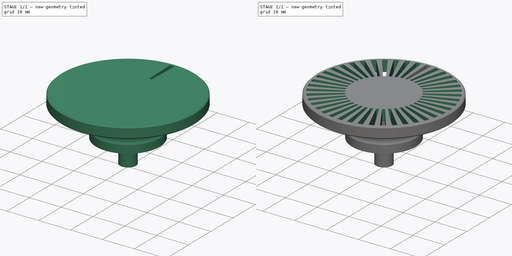
[diagram: build sequence overview — one tinted view per stage of 2, left to right]
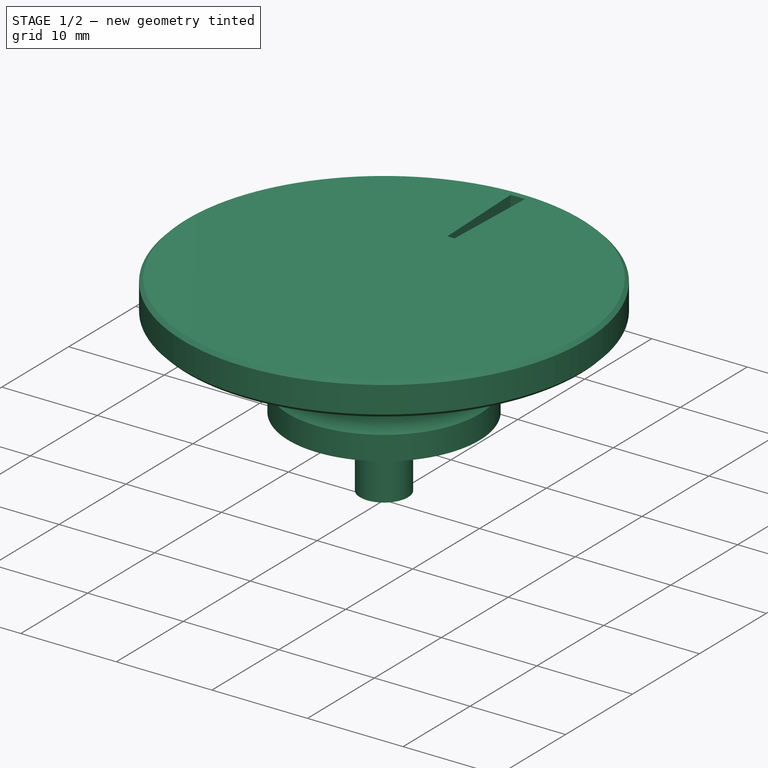
[diagram: stage 1 of 2 — iso view after this stage's code; geometry added in this stage tinted green]
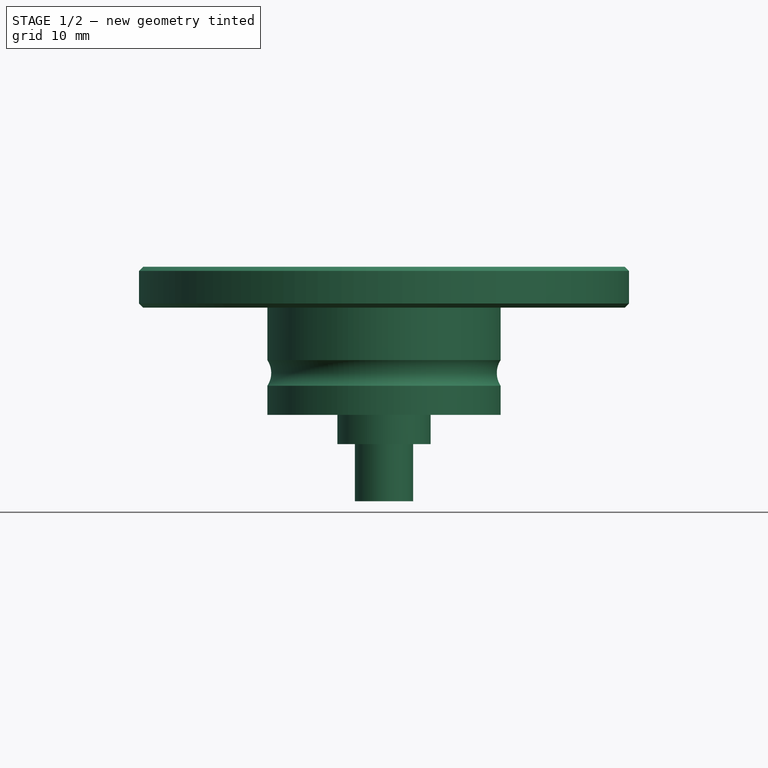
[diagram: stage 1 of 2 — front view after this stage's code; geometry added in this stage tinted green]
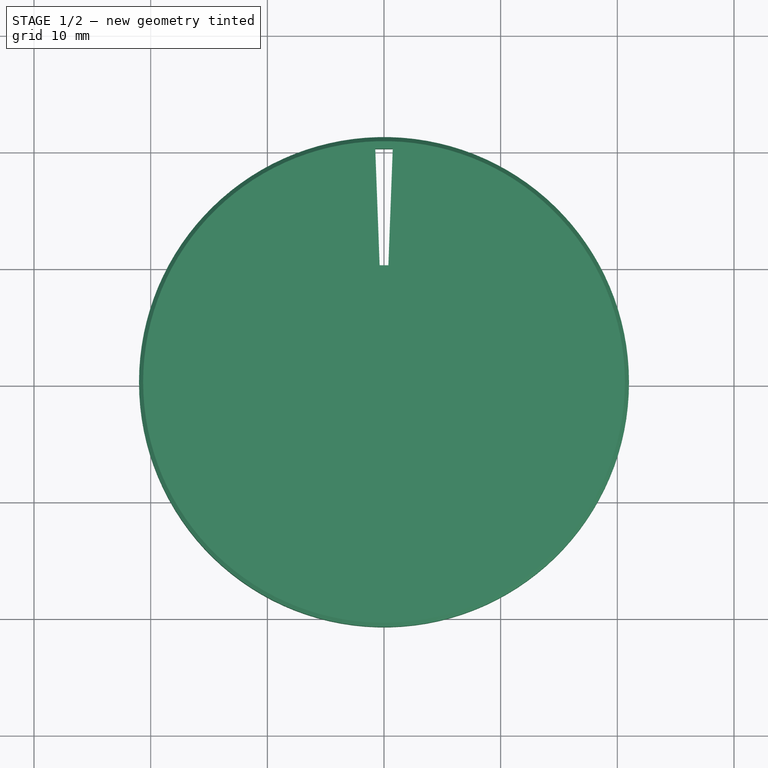
[diagram: stage 1 of 2 — top view after this stage's code; geometry added in this stage tinted green]
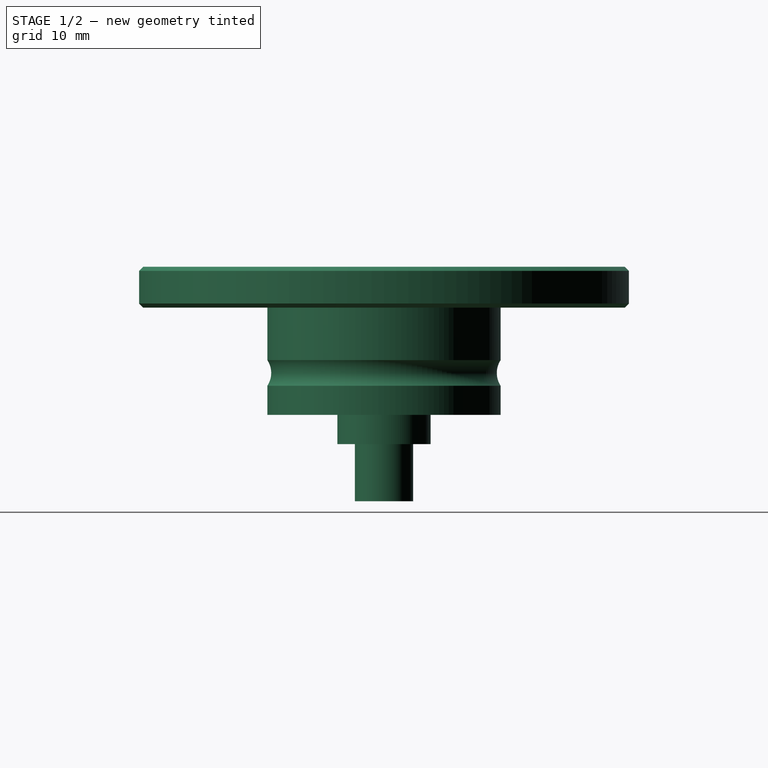
[diagram: stage 1 of 2 — right view after this stage's code; geometry added in this stage tinted green]
FCSTD DOCUMENT  (FreeCAD 0.20RUnknown)
Label: FilamentWheel
License: All rights reserved
LicenseURL: http://en.wikipedia.org/wiki/All_rights_reserved
objects: Sketcher::SketchObject×2, PartDesign::Revolution×1, PartDesign::Pocket×1, PartDesign::PolarPattern×1, PartDesign::Body×1
note: 8 computed .brp shape members not serialized (recipe doc carries the construction recipe); baked Part::Feature solids carry a one-line shape summary decoded from their .brp
EXTERNAL_REF file=SharedParameters.FCStd obj=Spreadsheet

FEATURE [Sketcher::SketchObject] Sketch  label="MainBodySketch"
  FullyConstrained = true
  MapMode = 5
  Placement = pos=(0,0,0) rot=(1,0,0;1.5708rad)
  Support = -> [XZ_Plane]
  expr: .Constraints.SpacerRadius = <<SharedParameters>>#<<Parameters>>.FilementWheel_RibberWheelContactRadius
  expr: Constraints[20] = <<SharedParameters>>#<<Parameters>>.Bearing_innerRadius
  expr: Constraints[22] = <<SharedParameters>>#<<Parameters>>.Bearing_height - <<SharedParameters>>#<<Parameters>>.Tolerance
  sketch-geometry (18):
    g0: LineSegment StartX=0 StartY=0 StartZ=0 EndX=2.5 EndY=0 EndZ=0
    g1: LineSegment StartX=2.5 StartY=0 StartZ=0 EndX=2.5 EndY=4.9 EndZ=0
    g2: LineSegment StartX=2.5 StartY=4.9 StartZ=0 EndX=4 EndY=4.9 EndZ=0
    g3: LineSegment StartX=4 StartY=4.9 StartZ=0 EndX=4 EndY=7.4 EndZ=0
    g4: LineSegment StartX=4 StartY=7.4 StartZ=0 EndX=10 EndY=7.4 EndZ=0
    g5: LineSegment StartX=10 StartY=7.4 StartZ=0 EndX=10 EndY=16.6 EndZ=0
    g6: LineSegment StartX=10 StartY=16.6 StartZ=0 EndX=21 EndY=16.6 EndZ=0
    g7: LineSegment StartX=21 StartY=16.6 StartZ=0 EndX=21 EndY=20.1 EndZ=0
    g8: LineSegment StartX=21 StartY=20.1 StartZ=0 EndX=0 EndY=20.1 EndZ=0
    g9: LineSegment StartX=0 StartY=20.1 StartZ=0 EndX=0 EndY=0 EndZ=0
    g10: LineSegment StartX=10 StartY=7.4 StartZ=0 EndX=10 EndY=9.9 EndZ=0
    g11: LineSegment StartX=10 StartY=16.6 StartZ=0 EndX=10 EndY=12.1 EndZ=0
    g12: ArcOfCircle CenterX=11.6703 CenterY=11 CenterZ=0 NormalX=0 NormalY=0 NormalZ=1 AngleXU=0 Radius=2 StartAngle=2.55923 EndAngle=3.72396
    g13: LineSegment StartX=0 StartY=20.1 StartZ=0 EndX=20.6464 EndY=20.1 EndZ=0
    g14: LineSegment StartX=21 StartY=19.7464 StartZ=0 EndX=21 EndY=16.9536 EndZ=0
    g15: LineSegment StartX=10 StartY=16.6 StartZ=0 EndX=20.6464 EndY=16.6 EndZ=0
    g16: LineSegment StartX=20.6464 StartY=20.1 StartZ=0 EndX=21 EndY=19.7464 EndZ=0
    g17: LineSegment StartX=21 StartY=16.9536 StartZ=0 EndX=20.6464 EndY=16.6 EndZ=0
  constraints (54):
    c: Coincident(g-1,g0)
    c: PointOnObject(g0,g-1)
    c: Coincident(g0,g1)
    c: Vertical(g1)
    c: Coincident(g1,g2)
    c: Coincident(g2,g3)
    c: Vertical(g3)
    c: Coincident(g3,g4)
    c: Horizontal(g4)
    c: Coincident(g4,g5)
    c: Vertical(g5)
    c: Coincident(g5,g6)
    c: Horizontal(g6)
    c: Coincident(g6,g7)
    c: Vertical(g7)
    c: Coincident(g7,g8)
    c: PointOnObject(g8,g-2)
    c: Horizontal(g8)
    c: Coincident(g8,g9)
    c: Coincident(g9,g0)
    c: DistanceX(g0,g0) = 2.5
    c: Horizontal(g2)
    c: DistanceY(g1,g1) = 4.9
    c: DistanceX(g2) = 4
    c: DistanceX(g4) = 10  'SpacerRadius'
    c: DistanceY(g3,g3) = 2.5
    c: DistanceY(g5,g5) = 9.2
    c: Coincident(g10,g4)
    c: PointOnObject(g10,g5)
    c: Coincident(g11,g6)
    c: PointOnObject(g11,g5)
    c: Coincident(g12,g10)
    c: Coincident(g12,g11)
    c: Diameter(g12) = 4
    c: DistanceY(g10,g10) = 2.5
    c: DistanceX(g7) = 21
    c: DistanceY(g7,g7) = 3.5
    c: PointOnObject(g13,g9)
    c: PointOnObject(g13,g8)
    c: Horizontal(g13)
    c: PointOnObject(g14,g7)
    c: PointOnObject(g14,g7)
    c: Coincident(g15,g11)
    c: PointOnObject(g15,g6)
    c: Coincident(g16,g13)
    c: Coincident(g16,g14)
    c: Coincident(g17,g14)
    c: Coincident(g17,g15)
    c: Perpendicular(g16,g17)
    c: Distance(g16) = 0.5
    c: Angle(g8,g16) = 2.35619
    c: Equal(g16,g17)
    c: DistanceY(g10,g11) = 2.2
    c: DistanceY(g9) = 20.1  'Height'
FEATURE [PartDesign::Revolution] Revolution  label="MainBodyRevolution"
  Angle = 360
  Axis = (0,2e-16,1)
  Base = (0,0,0)
  Placement = pos=(0,0,0) rot=(1,0,0;1.5708rad)
  Profile = -> Sketch
  ReferenceAxis = -> Sketch [V_Axis]
  Refine = true
  Reversed = true
FEATURE [Sketcher::SketchObject] Sketch001  label="HoleSketch"
  AttachmentOffset = pos=(0,0,20.1) rot=(0,0,1;0rad)
  FullyConstrained = true
  MapMode = 5
  Placement = pos=(0,0,20.1) rot=(0,0,1;0rad)
  Support = -> [XY_Plane]
  expr: .AttachmentOffset.Base.z = <<MainBodySketch>>.Constraints.Height
  expr: Constraints[10] = <<MainBodySketch>>.Constraints.SpacerRadius
  sketch-geometry (5):
    g0: LineSegment StartX=0 StartY=0 StartZ=0 EndX=-0.75 EndY=20 EndZ=0
    g1: LineSegment StartX=-0.75 StartY=20 StartZ=0 EndX=0.75 EndY=20 EndZ=0
    g2: LineSegment StartX=0.75 StartY=20 StartZ=0 EndX=0.375 EndY=10 EndZ=0
    g3: LineSegment StartX=0.375 StartY=10 StartZ=0 EndX=-0.375 EndY=10 EndZ=0
    g4: LineSegment StartX=-0.375 StartY=10 StartZ=0 EndX=-0.75 EndY=20 EndZ=0
  constraints (12):
    c: Coincident(g0,g-1)
    c: Coincident(g1,g0)
    c: Coincident(g2,g1)
    c: Coincident(g3,g2)
    c: Coincident(g4,g3)
    c: Coincident(g4,g1)
    c: PointOnObject(g3,g0)
    c: Symmetric(g2,g3,g-2)
    c: Symmetric(g1,g1,g-2)
    c: DistanceX(g1,g1) = 1.5
    c: DistanceY(g2) = 10
    c: DistanceY(g1) = 20
FEATURE [PartDesign::Pocket] Pocket  label="HolePocket"
  BaseFeature = -> Revolution
  Direction = (0,0,-1)
  Length = 5
  Length2 = 5
  Placement = pos=(0,0,0) rot=(1,0,0;1.5708rad)
  Profile = -> Sketch001
  ReferenceAxis = -> Sketch001 [N_Axis]
  Refine = true
  Type = 1
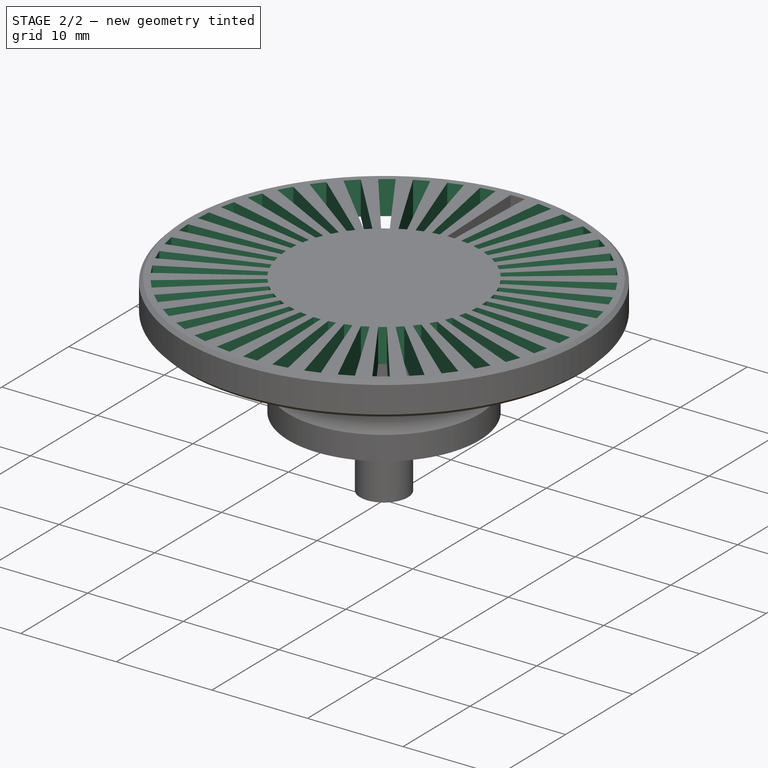
[diagram: stage 2 of 2 — iso view after this stage's code; geometry added in this stage tinted green]
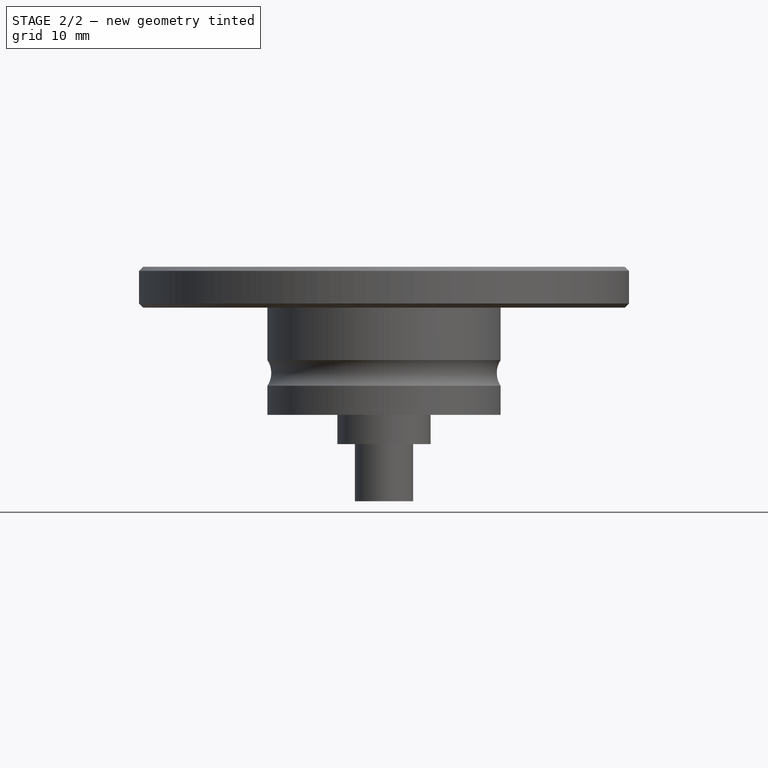
[diagram: stage 2 of 2 — front view after this stage's code; geometry added in this stage tinted green]
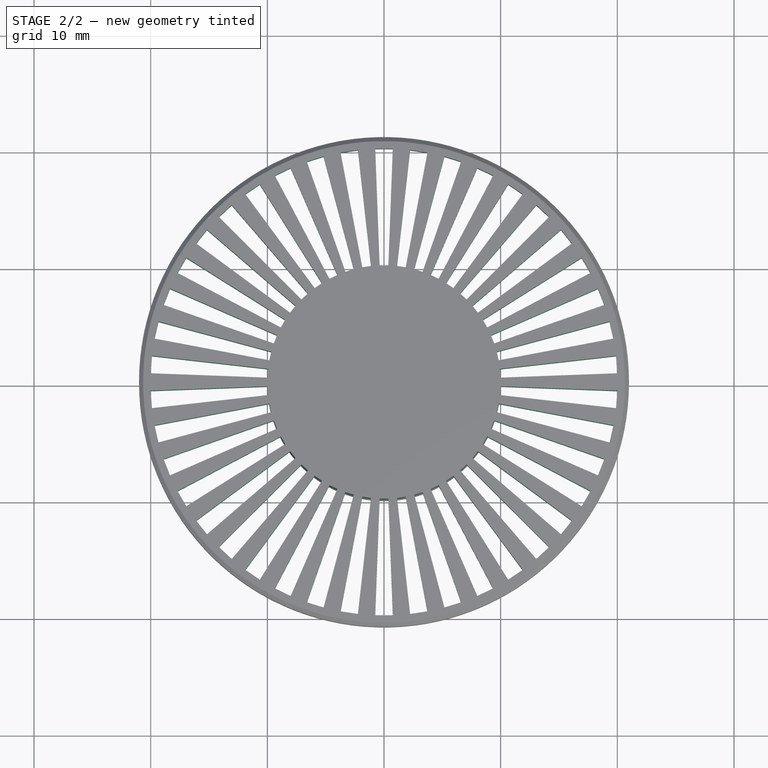
[diagram: stage 2 of 2 — top view after this stage's code; geometry added in this stage tinted green]
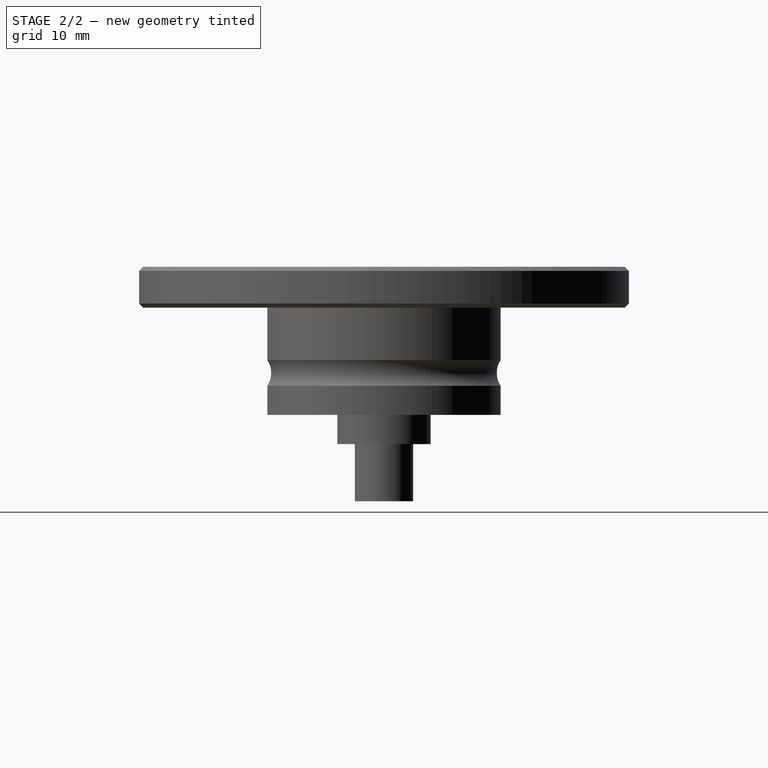
[diagram: stage 2 of 2 — right view after this stage's code; geometry added in this stage tinted green]
FEATURE [PartDesign::PolarPattern] PolarPattern
  Angle = 360
  Axis = -> Sketch001 [N_Axis]
  BaseFeature = -> Pocket
  Occurrences = 42
  Originals = -> [Pocket]
  Placement = pos=(0,0,0) rot=(1,0,0;1.5708rad)
  Refine = true
FEATURE [PartDesign::Body] Body  label="FilamentWheel"
  Group = -> [Sketch,Revolution,Sketch001,Pocket,PolarPattern]
  Origin = -> Origin
  Tip = -> PolarPattern
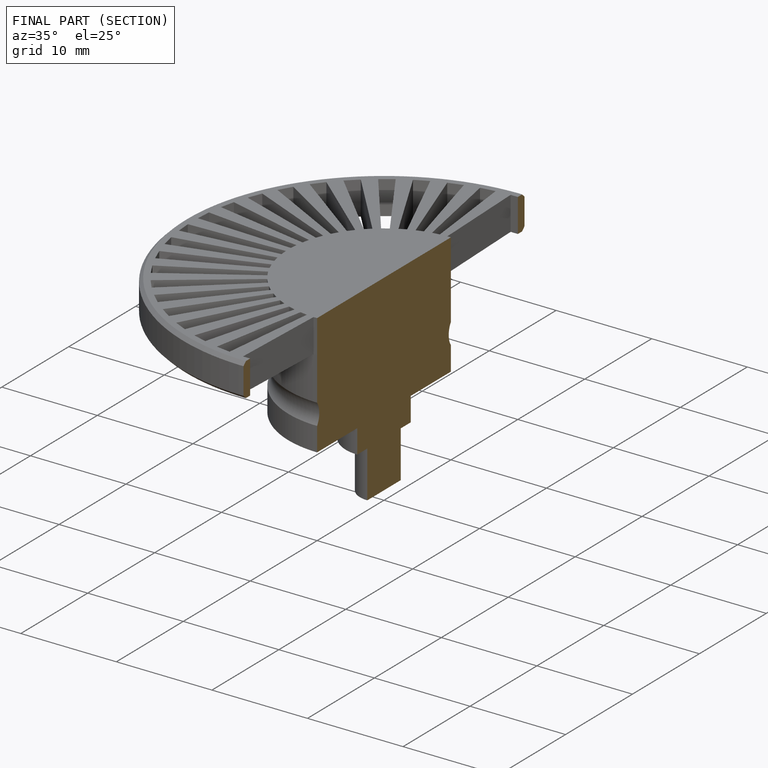
[diagram: finished part — half-section view (interior)]
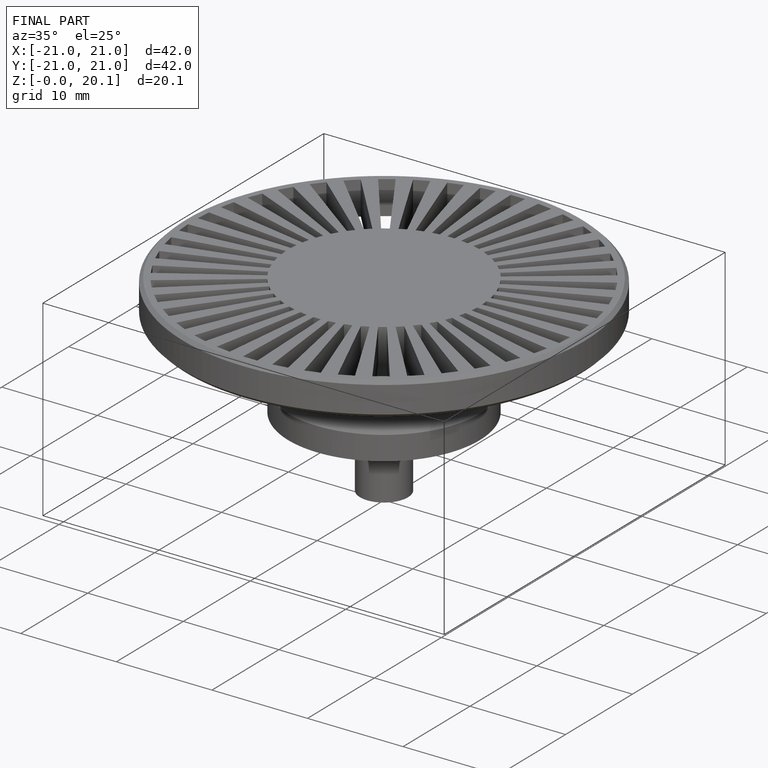
[diagram: finished part — iso view with bounding-box wireframe]
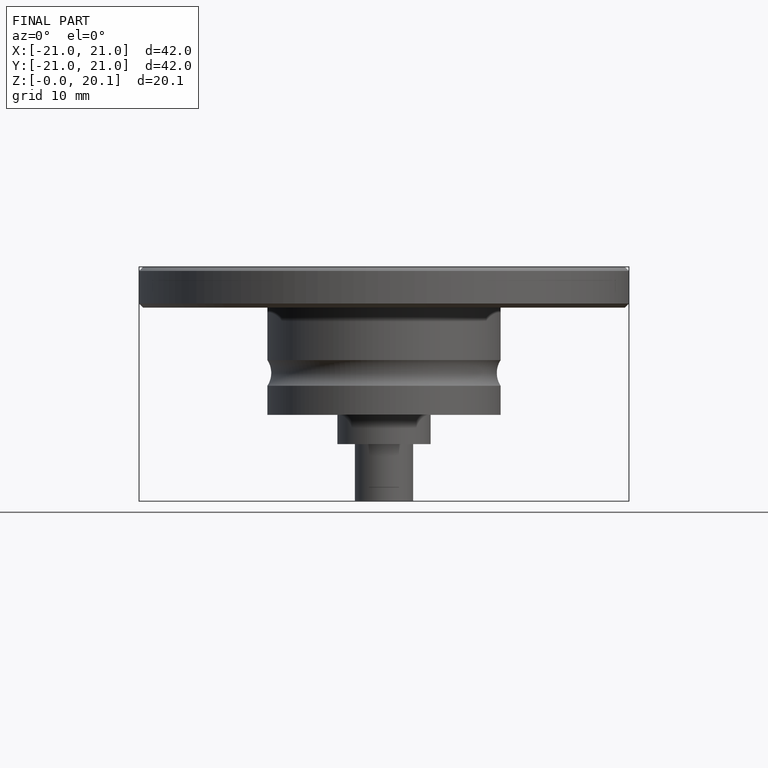
[diagram: finished part — front view with bounding-box wireframe]
